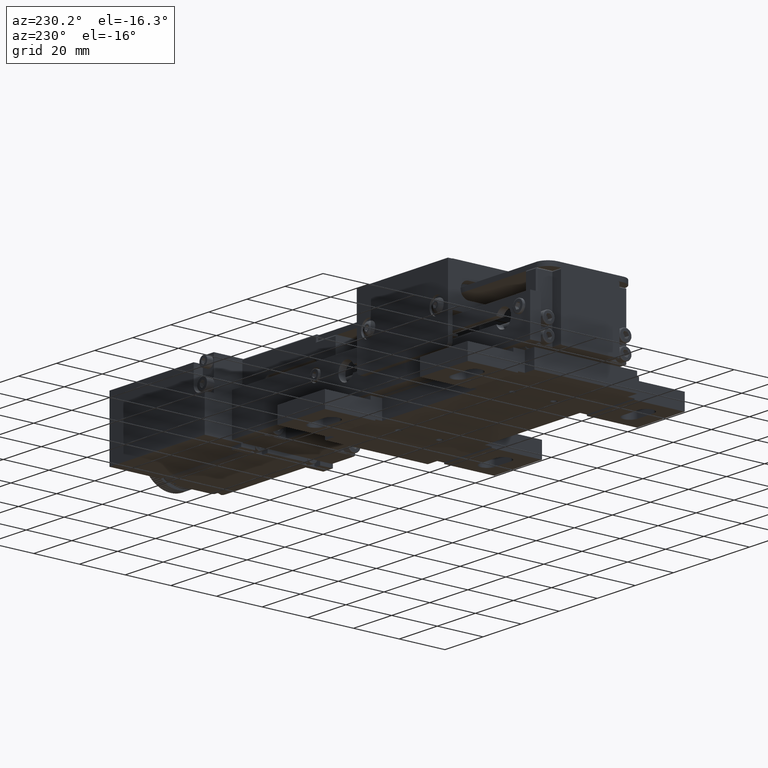
[diagram: clean part render]
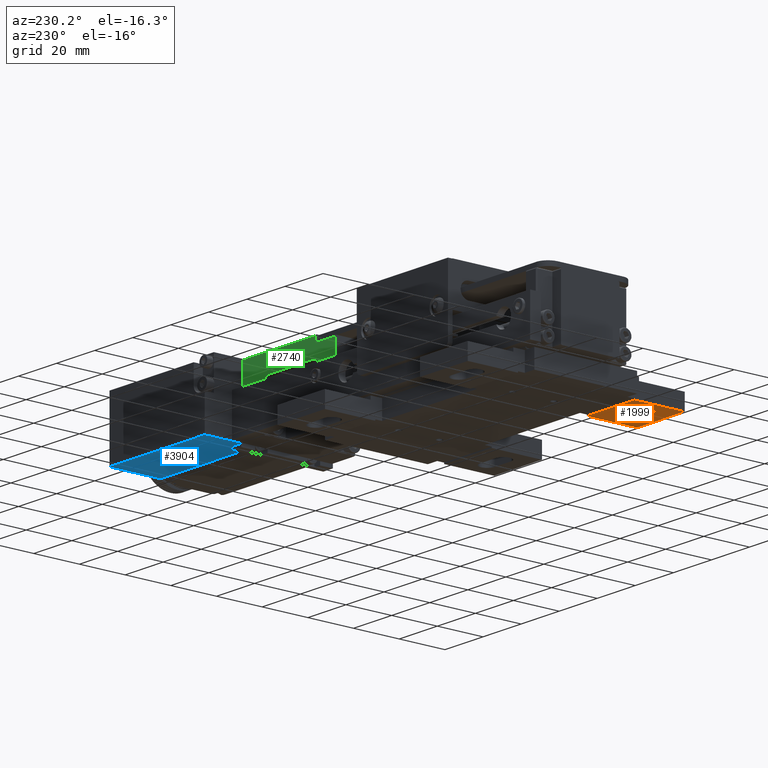
[diagram: same view with three faces highlighted in distinct colors, each labeled with its STEP entity id]
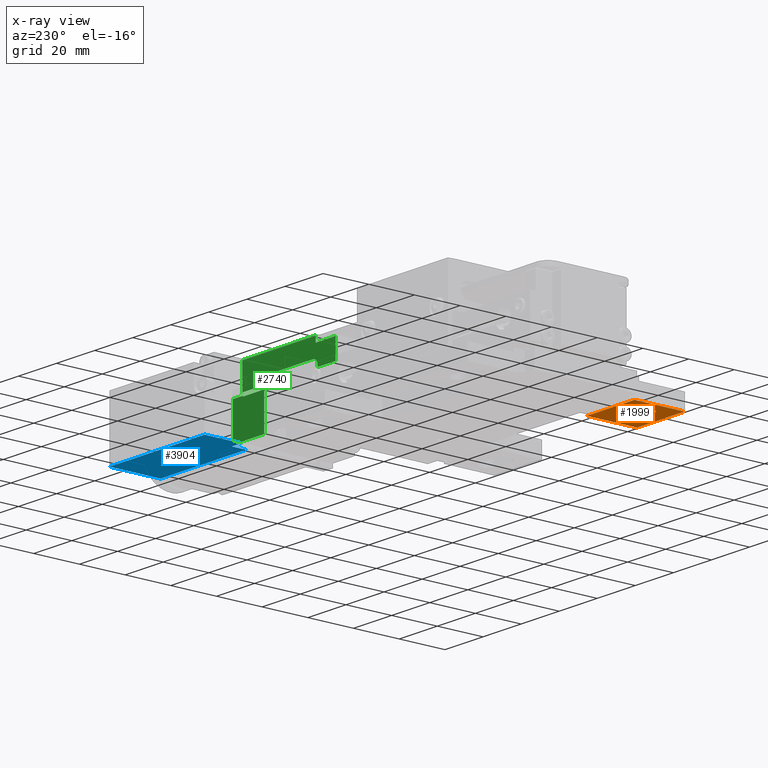
[diagram: x-ray of the same camera — body ghosted, the three highlighted faces saturated]
A machine part, auxiliary view with three faces highlighted in distinct colors.
The next image is the same camera in x-ray (body ghosted, the three faces saturated) — at least one of them is partly hidden behind the body in this view.
Their STEP definitions:

[orange] entity #1999 — the highlighted planar face has unit normal (0, 0, -1).
#31=FACE_BOUND('',#6662,.T.);
#531=PLANE('',#41084);
#1999=ADVANCED_FACE('',(#4322,#31),#531,.T.);
#4322=FACE_OUTER_BOUND('',#6661,.T.);
#6661=EDGE_LOOP('',(#9485,#9486,#9487,#9488));
#6662=EDGE_LOOP('',(#9489,#9490,#9491,#9492));
#9485=ORIENTED_EDGE('',*,*,#22705,.T.);
#9486=ORIENTED_EDGE('',*,*,#22696,.F.);
#9487=ORIENTED_EDGE('',*,*,#22726,.T.);
#9488=ORIENTED_EDGE('',*,*,#22727,.T.);
#9489=ORIENTED_EDGE('',*,*,#22621,.T.);
#9490=ORIENTED_EDGE('',*,*,#22648,.T.);
#9491=ORIENTED_EDGE('',*,*,#22728,.T.);
#9492=ORIENTED_EDGE('',*,*,#22651,.T.);
#22621=EDGE_CURVE('',#36024,#36022,#29326,.T.);
#22648=EDGE_CURVE('',#36022,#36046,#33692,.T.);
#22651=EDGE_CURVE('',#36048,#36024,#33694,.T.);
#22696=EDGE_CURVE('',#36070,#36071,#29373,.T.);
#22705=EDGE_CURVE('',#36078,#36071,#29382,.T.);
#22726=EDGE_CURVE('',#36070,#36084,#29403,.T.);
#22727=EDGE_CURVE('',#36084,#36078,#29404,.T.);
#22728=EDGE_CURVE('',#36046,#36048,#29405,.T.);
#29326=B_SPLINE_CURVE_WITH_KNOTS('',1,(#61887,#61888),.UNSPECIFIED.,.F.,
 .F.,(2,2),(-8.5,0.),.UNSPECIFIED.);
#29373=B_SPLINE_CURVE_WITH_KNOTS('',1,(#62121,#62122),.UNSPECIFIED.,.F.,
 .F.,(2,2),(0.,21.9999999999999),.UNSPECIFIED.);
#29382=B_SPLINE_CURVE_WITH_KNOTS('',1,(#62139,#62140),.UNSPECIFIED.,.F.,
 .F.,(2,2),(-25.,0.),.UNSPECIFIED.);
#29403=B_SPLINE_CURVE_WITH_KNOTS('',1,(#62181,#62182),.UNSPECIFIED.,.F.,
 .F.,(2,2),(0.,25.),.UNSPECIFIED.);
#29404=B_SPLINE_CURVE_WITH_KNOTS('',1,(#62183,#62184),.UNSPECIFIED.,.F.,
 .F.,(2,2),(0.,22.),.UNSPECIFIED.);
#29405=B_SPLINE_CURVE_WITH_KNOTS('',1,(#62185,#62186),.UNSPECIFIED.,.F.,
 .F.,(2,2),(0.,8.5),.UNSPECIFIED.);
#33692=(
BOUNDED_CURVE()
B_SPLINE_CURVE(2,(#61965,#61966,#61967,#61968,#61969),.UNSPECIFIED.,.F.,
 .F.)
B_SPLINE_CURVE_WITH_KNOTS((3,2,3),(-10.2101761241668,-5.10508806208342,
0.),.UNSPECIFIED.)
CURVE()
GEOMETRIC_REPRESENTATION_ITEM()
RATIONAL_B_SPLINE_CURVE((1.,0.707106781186547,1.,0.707106781186547,1.))
REPRESENTATION_ITEM('')
);
#33694=(
BOUNDED_CURVE()
B_SPLINE_CURVE(2,(#61977,#61978,#61979,#61980,#61981),.UNSPECIFIED.,.F.,
 .F.)
B_SPLINE_CURVE_WITH_KNOTS((3,2,3),(-10.2101761241668,-5.10508806208342,
0.),.UNSPECIFIED.)
CURVE()
GEOMETRIC_REPRESENTATION_ITEM()
RATIONAL_B_SPLINE_CURVE((1.,0.707106781186547,1.,0.707106781186547,1.))
REPRESENTATION_ITEM('')
);
#36022=VERTEX_POINT('',#57339);
#36024=VERTEX_POINT('',#57341);
#36046=VERTEX_POINT('',#57363);
#36048=VERTEX_POINT('',#57365);
#36070=VERTEX_POINT('',#57387);
#36071=VERTEX_POINT('',#57388);
#36078=VERTEX_POINT('',#57395);
#36084=VERTEX_POINT('',#57401);
#41084=AXIS2_PLACEMENT_3D('',#45413,#43140,$);
#43140=DIRECTION('',(0.,0.,-1.));
#45413=CARTESIAN_POINT('',(-103.619998857798,-23.1800009028451,0.00262150201269745));
#57339=CARTESIAN_POINT('',(-92.7499988577964,-34.2500009028489,0.00262150201297828));
#57341=CARTESIAN_POINT('',(-84.2499988577964,-34.2500009028497,0.00262150201306355));
#57363=CARTESIAN_POINT('',(-92.749998857797,-40.7500009028489,0.00262150201297828));
#57365=CARTESIAN_POINT('',(-84.249998857797,-40.7500009028497,0.00262150201306355));
#57387=CARTESIAN_POINT('',(-75.9999988577977,-47.5000009028505,0.00262150201328382));
#57388=CARTESIAN_POINT('',(-75.9999988577956,-25.5000009028505,0.00262150201308486));
#57395=CARTESIAN_POINT('',(-100.999998857796,-25.5000009028482,0.00262150201276512));
#57401=CARTESIAN_POINT('',(-100.999998857798,-47.5000009028482,0.0026215020128717));
#61887=CARTESIAN_POINT('',(-84.2499988577964,-34.2500009028497,0.00262150201306355));
#61888=CARTESIAN_POINT('',(-92.7499988577964,-34.2500009028489,0.00262150201297828));
#61965=CARTESIAN_POINT('',(-92.7499988577964,-34.2500009028489,0.00262150201297828));
#61966=CARTESIAN_POINT('',(-95.9999988577964,-34.2500009028485,0.00262150201293412));
#61967=CARTESIAN_POINT('',(-95.9999988577967,-37.5000009028486,0.00262150201294122));
#61968=CARTESIAN_POINT('',(-95.999998857797,-40.7500009028486,0.00262150201294833));
#61969=CARTESIAN_POINT('',(-92.749998857797,-40.7500009028489,0.00262150201299249));
#61977=CARTESIAN_POINT('',(-84.249998857797,-40.7500009028497,0.00262150201306355));
#61978=CARTESIAN_POINT('',(-80.999998857797,-40.75000090285,0.00262150201310771));
#61979=CARTESIAN_POINT('',(-80.9999988577967,-37.50000090285,0.00262150201310061));
#61980=CARTESIAN_POINT('',(-80.9999988577964,-34.25000090285,0.0026215020130935));
#61981=CARTESIAN_POINT('',(-84.2499988577964,-34.2500009028497,0.00262150201304934));
#62121=CARTESIAN_POINT('',(-75.9999988577977,-47.5000009028505,0.00262150201328382));
#62122=CARTESIAN_POINT('',(-75.9999988577956,-25.5000009028505,0.00262150201308486));
#62139=CARTESIAN_POINT('',(-100.999998857796,-25.5000009028482,0.00262150201276512));
#62140=CARTESIAN_POINT('',(-75.9999988577956,-25.5000009028505,0.00262150201308486));
#62181=CARTESIAN_POINT('',(-75.9999988577977,-47.5000009028505,0.00262150201328382));
#62182=CARTESIAN_POINT('',(-100.999998857798,-47.5000009028482,0.0026215020128717));
#62183=CARTESIAN_POINT('',(-100.999998857798,-47.5000009028482,0.0026215020128717));
#62184=CARTESIAN_POINT('',(-100.999998857796,-25.5000009028482,0.00262150201276512));
#62185=CARTESIAN_POINT('',(-92.749998857797,-40.7500009028489,0.00262150201297828));
#62186=CARTESIAN_POINT('',(-84.249998857797,-40.7500009028497,0.00262150201306355));

[blue] entity #3904 — the highlighted planar face has unit normal (0, 0, -1).
#1827=PLANE('',#42795);
#3904=ADVANCED_FACE('',(#6227),#1827,.T.);
#6227=FACE_OUTER_BOUND('',#8684,.T.);
#8684=EDGE_LOOP('',(#20240,#20241,#20242,#20243,#20244,#20245));
#20240=ORIENTED_EDGE('',*,*,#28263,.F.);
#20241=ORIENTED_EDGE('',*,*,#24713,.T.);
#20242=ORIENTED_EDGE('',*,*,#28309,.T.);
#20243=ORIENTED_EDGE('',*,*,#28302,.F.);
#20244=ORIENTED_EDGE('',*,*,#28310,.T.);
#20245=ORIENTED_EDGE('',*,*,#28266,.F.);
#24713=EDGE_CURVE('',#37391,#37390,#30808,.T.);
#28263=EDGE_CURVE('',#37391,#39782,#33231,.T.);
#28266=EDGE_CURVE('',#39782,#39783,#33234,.T.);
#28302=EDGE_CURVE('',#39810,#39811,#33250,.T.);
#28309=EDGE_CURVE('',#37390,#39811,#33257,.T.);
#28310=EDGE_CURVE('',#39810,#39783,#33258,.T.);
#30808=B_SPLINE_CURVE_WITH_KNOTS('',1,(#67903,#67904),.UNSPECIFIED.,.F.,
 .F.,(2,2),(-16.0000000000005,0.),.UNSPECIFIED.);
#33231=B_SPLINE_CURVE_WITH_KNOTS('',1,(#79845,#79846),.UNSPECIFIED.,.F.,
 .F.,(2,2),(0.,5.),.UNSPECIFIED.);
#33234=B_SPLINE_CURVE_WITH_KNOTS('',1,(#79851,#79852),.UNSPECIFIED.,.F.,
 .F.,(2,2),(0.,6.2999999999995),.UNSPECIFIED.);
#33250=B_SPLINE_CURVE_WITH_KNOTS('',1,(#79945,#79946),.UNSPECIFIED.,.F.,
 .F.,(2,2),(0.,22.3),.UNSPECIFIED.);
#33257=B_SPLINE_CURVE_WITH_KNOTS('',1,(#79959,#79960),.UNSPECIFIED.,.F.,
 .F.,(2,2),(0.,50.),.UNSPECIFIED.);
#33258=B_SPLINE_CURVE_WITH_KNOTS('',1,(#79961,#79962),.UNSPECIFIED.,.F.,
 .F.,(2,2),(0.,45.),.UNSPECIFIED.);
#37390=VERTEX_POINT('',#58707);
#37391=VERTEX_POINT('',#58708);
#39782=VERTEX_POINT('',#61099);
#39783=VERTEX_POINT('',#61100);
#39810=VERTEX_POINT('',#61127);
#39811=VERTEX_POINT('',#61128);
#42795=AXIS2_PLACEMENT_3D('',#55316,#44851,$);
#44851=DIRECTION('',(0.,0.,-1.));
#55316=CARTESIAN_POINT('',(103.120001142203,13.8499990971093,9.30262150199303));
#58707=CARTESIAN_POINT('',(48.0000011422025,38.4999990971149,9.30262150197422));
#58708=CARTESIAN_POINT('',(48.0000011422015,22.4999990971144,9.30262150198642));
#61099=CARTESIAN_POINT('',(53.0000011422015,22.4999990971141,9.30262150198642));
#61100=CARTESIAN_POINT('',(53.0000011422015,16.1999990971146,9.30262150199123));
#61127=CARTESIAN_POINT('',(98.0000011422015,16.1999990971125,9.30262150199124));
#61128=CARTESIAN_POINT('',(98.0000011422025,38.4999990971125,9.30262150197424));
#67903=CARTESIAN_POINT('',(48.0000011422015,22.4999990971144,9.30262150198642));
#67904=CARTESIAN_POINT('',(48.0000011422025,38.4999990971149,9.30262150197422));
#79845=CARTESIAN_POINT('',(48.0000011422015,22.4999990971144,9.30262150198642));
#79846=CARTESIAN_POINT('',(53.0000011422015,22.4999990971141,9.30262150198642));
#79851=CARTESIAN_POINT('',(53.0000011422015,22.4999990971141,9.30262150198642));
#79852=CARTESIAN_POINT('',(53.0000011422015,16.1999990971146,9.30262150199123));
#79945=CARTESIAN_POINT('',(98.0000011422015,16.1999990971125,9.30262150199124));
#79946=CARTESIAN_POINT('',(98.0000011422025,38.4999990971125,9.30262150197424));
#79959=CARTESIAN_POINT('',(48.0000011422025,38.4999990971149,9.30262150197422));
#79960=CARTESIAN_POINT('',(98.0000011422025,38.4999990971125,9.30262150197424));
#79961=CARTESIAN_POINT('',(98.0000011422015,16.1999990971125,9.30262150199124));
#79962=CARTESIAN_POINT('',(53.0000011422015,16.1999990971146,9.30262150199123));

[green] entity #2740 — the highlighted planar face has unit normal (0, 1, 0).
#1044=PLANE('',#41766);
#2740=ADVANCED_FACE('',(#5063),#1044,.T.);
#5063=FACE_OUTER_BOUND('',#7484,.T.);
#7484=EDGE_LOOP('',(#13584,#13585,#13586,#13587,#13588,#13589,#13590,#13591,
#13592,#13593,#13594,#13595,#13596,#13597,#13598,#13599,#13600,#13601,#13602,
#13603));
#13584=ORIENTED_EDGE('',*,*,#24808,.F.);
#13585=ORIENTED_EDGE('',*,*,#24120,.F.);
#13586=ORIENTED_EDGE('',*,*,#24159,.F.);
#13587=ORIENTED_EDGE('',*,*,#24655,.F.);
#13588=ORIENTED_EDGE('',*,*,#24621,.F.);
#13589=ORIENTED_EDGE('',*,*,#24639,.F.);
#13590=ORIENTED_EDGE('',*,*,#24157,.F.);
#13591=ORIENTED_EDGE('',*,*,#24141,.F.);
#13592=ORIENTED_EDGE('',*,*,#24133,.F.);
#13593=ORIENTED_EDGE('',*,*,#24139,.F.);
#13594=ORIENTED_EDGE('',*,*,#24152,.F.);
#13595=ORIENTED_EDGE('',*,*,#24638,.F.);
#13596=ORIENTED_EDGE('',*,*,#24197,.F.);
#13597=ORIENTED_EDGE('',*,*,#24085,.F.);
#13598=ORIENTED_EDGE('',*,*,#24072,.F.);
#13599=ORIENTED_EDGE('',*,*,#24064,.F.);
#13600=ORIENTED_EDGE('',*,*,#24705,.T.);
#13601=ORIENTED_EDGE('',*,*,#24809,.F.);
#13602=ORIENTED_EDGE('',*,*,#24810,.F.);
#13603=ORIENTED_EDGE('',*,*,#24807,.F.);
#24064=EDGE_CURVE('',#36989,#36990,#30364,.T.);
#24072=EDGE_CURVE('',#36990,#36994,#30367,.T.);
#24085=EDGE_CURVE('',#36994,#37002,#30376,.T.);
#24120=EDGE_CURVE('',#37023,#37024,#30397,.T.);
#24133=EDGE_CURVE('',#37031,#37030,#30403,.T.);
#24139=EDGE_CURVE('',#37034,#37031,#34124,.T.);
#24141=EDGE_CURVE('',#37030,#37035,#34126,.T.);
#24152=EDGE_CURVE('',#37038,#37034,#30411,.T.);
#24157=EDGE_CURVE('',#37035,#37039,#30415,.T.);
#24159=EDGE_CURVE('',#37040,#37023,#30417,.T.);
#24197=EDGE_CURVE('',#37002,#37050,#30441,.T.);
#24621=EDGE_CURVE('',#37339,#37340,#30755,.T.);
#24638=EDGE_CURVE('',#37050,#37038,#30764,.T.);
#24639=EDGE_CURVE('',#37039,#37339,#30765,.T.);
#24655=EDGE_CURVE('',#37340,#37040,#30775,.T.);
#24705=EDGE_CURVE('',#36989,#37383,#30800,.T.);
#24807=EDGE_CURVE('',#37465,#37466,#30855,.T.);
#24808=EDGE_CURVE('',#37024,#37465,#30856,.T.);
#24809=EDGE_CURVE('',#37467,#37383,#30857,.T.);
#24810=EDGE_CURVE('',#37466,#37467,#30858,.T.);
#30364=B_SPLINE_CURVE_WITH_KNOTS('',1,(#66310,#66311),.UNSPECIFIED.,.F.,
 .F.,(2,2),(0.,38.5),.UNSPECIFIED.);
#30367=B_SPLINE_CURVE_WITH_KNOTS('',1,(#66331,#66332),.UNSPECIFIED.,.F.,
 .F.,(2,2),(0.,2.49999999999997),.UNSPECIFIED.);
#30376=B_SPLINE_CURVE_WITH_KNOTS('',1,(#66361,#66362),.UNSPECIFIED.,.F.,
 .F.,(2,2),(0.,10.5),.UNSPECIFIED.);
#30397=B_SPLINE_CURVE_WITH_KNOTS('',1,(#66445,#66446),.UNSPECIFIED.,.F.,
 .F.,(2,2),(0.,11.499999999998),.UNSPECIFIED.);
#30403=B_SPLINE_CURVE_WITH_KNOTS('',1,(#66478,#66479),.UNSPECIFIED.,.F.,
 .F.,(2,2),(0.,23.),.UNSPECIFIED.);
#30411=B_SPLINE_CURVE_WITH_KNOTS('',1,(#66527,#66528),.UNSPECIFIED.,.F.,
 .F.,(2,2),(0.,0.7999974999899),.UNSPECIFIED.);
#30415=B_SPLINE_CURVE_WITH_KNOTS('',1,(#66538,#66539),.UNSPECIFIED.,.F.,
 .F.,(2,2),(0.,0.799997499987498),.UNSPECIFIED.);
#30417=B_SPLINE_CURVE_WITH_KNOTS('',1,(#66542,#66543),.UNSPECIFIED.,.F.,
 .F.,(2,2),(0.,15.7000025000125),.UNSPECIFIED.);
#30441=B_SPLINE_CURVE_WITH_KNOTS('',1,(#66636,#66637),.UNSPECIFIED.,.F.,
 .F.,(2,2),(0.,8.7999974999908),.UNSPECIFIED.);
#30755=B_SPLINE_CURVE_WITH_KNOTS('',1,(#67656,#67657),.UNSPECIFIED.,.F.,
 .F.,(2,2),(0.,1.5),.UNSPECIFIED.);
#30764=B_SPLINE_CURVE_WITH_KNOTS('',1,(#67702,#67703),.UNSPECIFIED.,.F.,
 .F.,(2,2),(0.,9.5),.UNSPECIFIED.);
#30765=B_SPLINE_CURVE_WITH_KNOTS('',1,(#67704,#67705),.UNSPECIFIED.,.F.,
 .F.,(2,2),(0.,11.3),.UNSPECIFIED.);
#30775=B_SPLINE_CURVE_WITH_KNOTS('',1,(#67742,#67743),.UNSPECIFIED.,.F.,
 .F.,(2,2),(0.,11.3),.UNSPECIFIED.);
#30800=B_SPLINE_CURVE_WITH_KNOTS('',1,(#67887,#67888),.UNSPECIFIED.,.F.,
 .F.,(2,2),(-12.5000000000133,0.),.UNSPECIFIED.);
#30855=B_SPLINE_CURVE_WITH_KNOTS('',1,(#68154,#68155),.UNSPECIFIED.,.F.,
 .F.,(2,2),(-1.2999999999961,0.),.UNSPECIFIED.);
#30856=B_SPLINE_CURVE_WITH_KNOTS('',1,(#68156,#68157),.UNSPECIFIED.,.F.,
 .F.,(2,2),(-5.,0.),.UNSPECIFIED.);
#30857=B_SPLINE_CURVE_WITH_KNOTS('',1,(#68158,#68159),.UNSPECIFIED.,.F.,
 .F.,(2,2),(-5.,0.),.UNSPECIFIED.);
#30858=B_SPLINE_CURVE_WITH_KNOTS('',1,(#68160,#68161),.UNSPECIFIED.,.F.,
 .F.,(2,2),(-14.7000000000039,0.),.UNSPECIFIED.);
#34124=(
BOUNDED_CURVE()
B_SPLINE_CURVE(2,(#66495,#66496,#66497),.UNSPECIFIED.,.F.,.F.)
B_SPLINE_CURVE_WITH_KNOTS((3,3),(0.,3.92699081698714),.UNSPECIFIED.)
CURVE()
GEOMETRIC_REPRESENTATION_ITEM()
RATIONAL_B_SPLINE_CURVE((1.,0.707106781186565,1.))
REPRESENTATION_ITEM('')
);
#34126=(
BOUNDED_CURVE()
B_SPLINE_CURVE(2,(#66501,#66502,#66503),.UNSPECIFIED.,.F.,.F.)
B_SPLINE_CURVE_WITH_KNOTS((3,3),(0.,3.92699081698744),.UNSPECIFIED.)
CURVE()
GEOMETRIC_REPRESENTATION_ITEM()
RATIONAL_B_SPLINE_CURVE((1.,0.707106781186519,1.))
REPRESENTATION_ITEM('')
);
#36989=VERTEX_POINT('',#58306);
#36990=VERTEX_POINT('',#58307);
#36994=VERTEX_POINT('',#58311);
#37002=VERTEX_POINT('',#58319);
#37023=VERTEX_POINT('',#58340);
#37024=VERTEX_POINT('',#58341);
#37030=VERTEX_POINT('',#58347);
#37031=VERTEX_POINT('',#58348);
#37034=VERTEX_POINT('',#58351);
#37035=VERTEX_POINT('',#58352);
#37038=VERTEX_POINT('',#58355);
#37039=VERTEX_POINT('',#58356);
#37040=VERTEX_POINT('',#58357);
#37050=VERTEX_POINT('',#58367);
#37339=VERTEX_POINT('',#58656);
#37340=VERTEX_POINT('',#58657);
#37383=VERTEX_POINT('',#58700);
#37465=VERTEX_POINT('',#58782);
#37466=VERTEX_POINT('',#58783);
#37467=VERTEX_POINT('',#58784);
#41766=AXIS2_PLACEMENT_3D('',#49557,#43822,$);
#43822=DIRECTION('',(0.,1.,0.));
#49557=CARTESIAN_POINT('',(-6.51999885779424,21.9999990971174,7.03262150198902));
#58306=CARTESIAN_POINT('',(48.0000011422065,21.9999990971397,38.502621502004));
#58307=CARTESIAN_POINT('',(9.50000114220646,21.9999990971432,38.5026215020065));
#58311=CARTESIAN_POINT('',(9.50000114220646,21.9999990971432,36.0026215020065));
#58319=CARTESIAN_POINT('',(-0.999998857793557,21.9999990971441,36.0026215020072));
#58340=CARTESIAN_POINT('',(36.5000011422045,21.9999990971401,10.0026215020047));
#58341=CARTESIAN_POINT('',(48.0000011422025,21.9999990971147,10.0026215019907));
#58347=CARTESIAN_POINT('',(34.0000011422055,21.9999990971408,30.5026215020049));
#58348=CARTESIAN_POINT('',(11.0000011422054,21.9999990971429,30.5026215020064));
#58351=CARTESIAN_POINT('',(8.50000114220545,21.9999990971431,28.0026215020065));
#58352=CARTESIAN_POINT('',(36.5000011422055,21.9999990971405,28.0026215020047));
#58355=CARTESIAN_POINT('',(8.50000114220546,21.9999990971431,27.2026240020166));
#58356=CARTESIAN_POINT('',(36.5000011422055,21.9999990971405,27.2026240020172));
#58357=CARTESIAN_POINT('',(36.5000011422055,21.9999990971405,25.7026240020172));
#58367=CARTESIAN_POINT('',(-0.999998857794537,21.9999990971439,27.2026240020164));
#58656=CARTESIAN_POINT('',(47.8000011422054,21.999999097146,27.2026240020174));
#58657=CARTESIAN_POINT('',(47.8000011422054,21.999999097146,25.7026240020174));
#58700=CARTESIAN_POINT('',(48.0000011422025,21.9999990971269,26.0026215019907));
#58782=CARTESIAN_POINT('',(53.0000011422025,21.9999990971142,10.0026215019907));
#58783=CARTESIAN_POINT('',(53.0000011422025,21.9999990971152,11.3026215019868));
#58784=CARTESIAN_POINT('',(53.0000011422025,21.9999990971264,26.0026215019907));
#66310=CARTESIAN_POINT('',(48.0000011422065,21.9999990971397,38.502621502004));
#66311=CARTESIAN_POINT('',(9.50000114220646,21.9999990971432,38.5026215020065));
#66331=CARTESIAN_POINT('',(9.50000114220646,21.9999990971432,38.5026215020065));
#66332=CARTESIAN_POINT('',(9.50000114220646,21.9999990971432,36.0026215020065));
#66361=CARTESIAN_POINT('',(9.50000114220646,21.9999990971432,36.0026215020065));
#66362=CARTESIAN_POINT('',(-0.999998857793557,21.9999990971441,36.0026215020072));
#66445=CARTESIAN_POINT('',(36.5000011422045,21.9999990971401,10.0026215020047));
#66446=CARTESIAN_POINT('',(48.0000011422025,21.9999990971147,10.0026215019907));
#66478=CARTESIAN_POINT('',(11.0000011422054,21.9999990971429,30.5026215020064));
#66479=CARTESIAN_POINT('',(34.0000011422055,21.9999990971408,30.5026215020049));
#66495=CARTESIAN_POINT('',(8.50000114220544,21.9999990971431,28.0026215020065));
#66496=CARTESIAN_POINT('',(8.50000114220556,21.9999990971431,30.5026215020064));
#66497=CARTESIAN_POINT('',(11.0000011422055,21.9999990971429,30.5026215020064));
#66501=CARTESIAN_POINT('',(34.0000011422055,21.9999990971409,30.5026215020049));
#66502=CARTESIAN_POINT('',(36.5000011422057,21.9999990971406,30.5026215020049));
#66503=CARTESIAN_POINT('',(36.5000011422055,21.9999990971405,28.0026215020047));
#66527=CARTESIAN_POINT('',(8.50000114220546,21.9999990971431,27.2026240020166));
#66528=CARTESIAN_POINT('',(8.50000114220545,21.9999990971431,28.0026215020065));
#66538=CARTESIAN_POINT('',(36.5000011422055,21.9999990971405,28.0026215020047));
#66539=CARTESIAN_POINT('',(36.5000011422055,21.9999990971405,27.2026240020172));
#66542=CARTESIAN_POINT('',(36.5000011422055,21.9999990971405,25.7026240020172));
#66543=CARTESIAN_POINT('',(36.5000011422045,21.9999990971401,10.0026215020047));
#66636=CARTESIAN_POINT('',(-0.999998857793557,21.9999990971441,36.0026215020072));
#66637=CARTESIAN_POINT('',(-0.999998857794537,21.9999990971439,27.2026240020164));
#67656=CARTESIAN_POINT('',(47.8000011422054,21.999999097146,27.2026240020174));
#67657=CARTESIAN_POINT('',(47.8000011422054,21.999999097146,25.7026240020174));
#67702=CARTESIAN_POINT('',(-0.999998857794537,21.9999990971439,27.2026240020164));
#67703=CARTESIAN_POINT('',(8.50000114220546,21.9999990971431,27.2026240020166));
#67704=CARTESIAN_POINT('',(36.5000011422055,21.9999990971405,27.2026240020172));
#67705=CARTESIAN_POINT('',(47.8000011422054,21.999999097146,27.2026240020174));
#67742=CARTESIAN_POINT('',(47.8000011422054,21.999999097146,25.7026240020174));
#67743=CARTESIAN_POINT('',(36.5000011422055,21.9999990971405,25.7026240020172));
#67887=CARTESIAN_POINT('',(48.0000011422065,21.9999990971397,38.502621502004));
#67888=CARTESIAN_POINT('',(48.0000011422025,21.9999990971269,26.0026215019907));
#68154=CARTESIAN_POINT('',(53.0000011422025,21.9999990971142,10.0026215019907));
#68155=CARTESIAN_POINT('',(53.0000011422025,21.9999990971152,11.3026215019868));
#68156=CARTESIAN_POINT('',(48.0000011422025,21.9999990971147,10.0026215019907));
#68157=CARTESIAN_POINT('',(53.0000011422025,21.9999990971142,10.0026215019907));
#68158=CARTESIAN_POINT('',(53.0000011422025,21.9999990971264,26.0026215019907));
#68159=CARTESIAN_POINT('',(48.0000011422025,21.9999990971269,26.0026215019907));
#68160=CARTESIAN_POINT('',(53.0000011422025,21.9999990971152,11.3026215019868));
#68161=CARTESIAN_POINT('',(53.0000011422025,21.9999990971264,26.0026215019907));